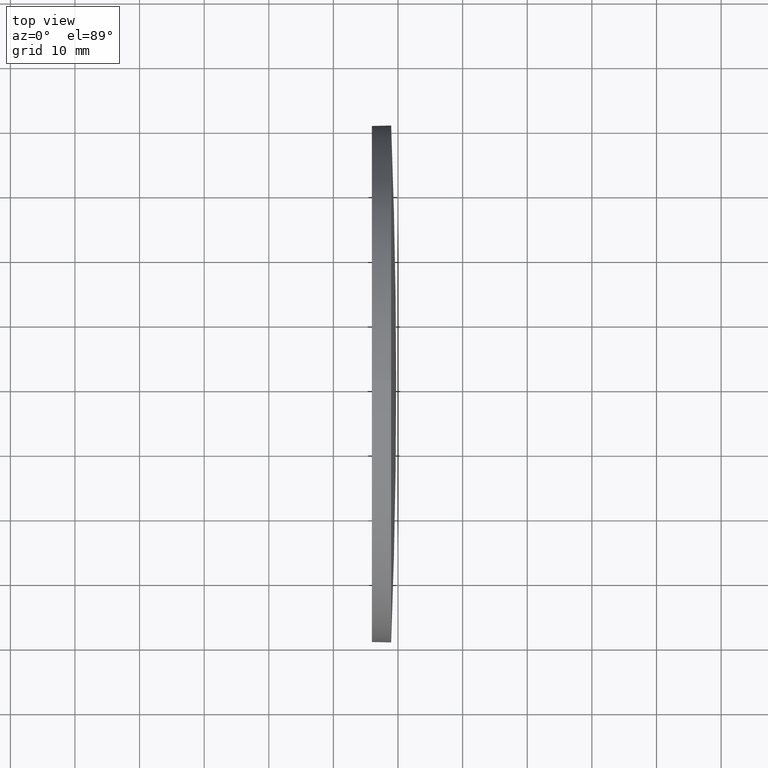
[diagram: clean part render]
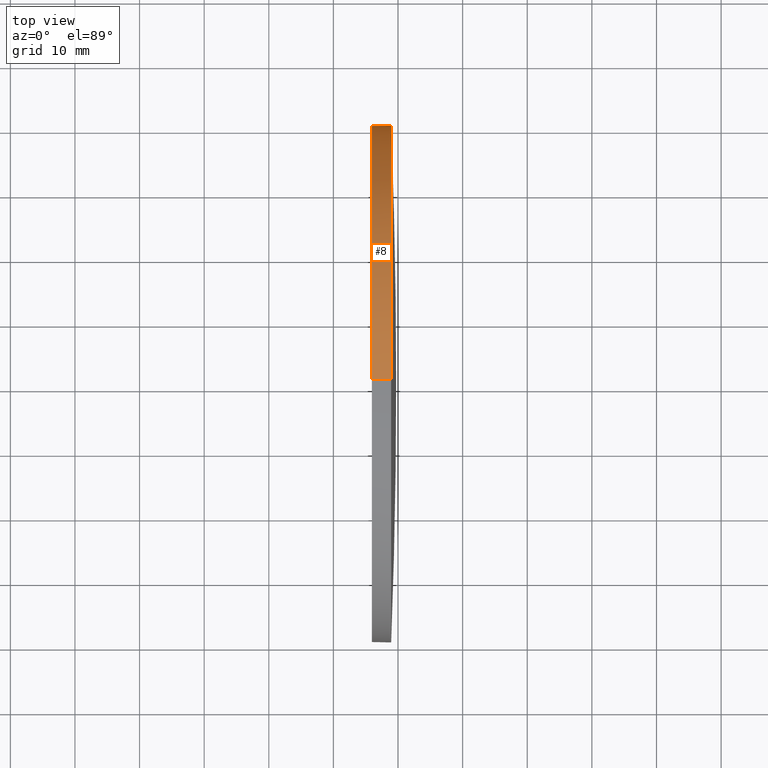
[diagram: same view with one face highlighted and labeled with its STEP entity id]
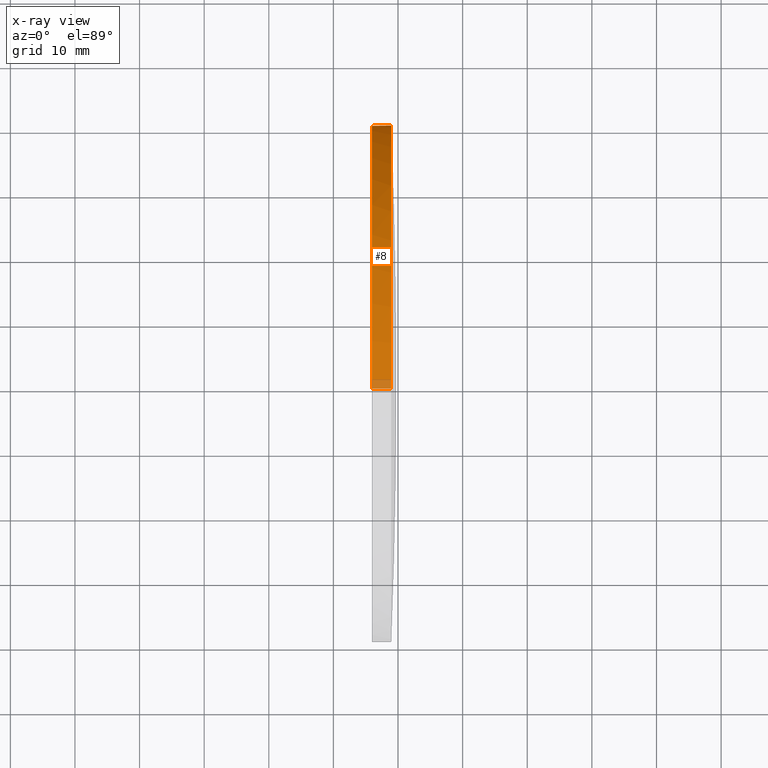
[diagram: x-ray of the same camera — body ghosted, the highlighted face saturated]
A machine part, top view. The second image highlights one B-rep face of the part: STEP entity #8.
The next image is the same camera in x-ray: the body ghosted, the highlighted face saturated — about 3% of this face is hidden behind the body in this view.
In plain terms, the highlighted cylindrical surface (partial cylindrical patch) has radius 40 mm, axis along (-1, -0, -0).
Its self-contained STEP definition (entity closure, byte-faithful):
#6 = DIRECTION ( 'NONE',  ( -1.000000000000000000, -0.0000000000000000000, -0.0000000000000000000 ) ) ;
#7 = DIRECTION ( 'NONE',  ( -1.000000000000000000, -0.0000000000000000000, -0.0000000000000000000 ) ) ;
#8 = ADVANCED_FACE ( 'NONE', ( #135 ), #43, .T. ) ;
#11 = ORIENTED_EDGE ( 'NONE', *, *, #40, .T. ) ;
#12 = CARTESIAN_POINT ( 'NONE',  ( 217.9945825323866300, 130.4671098528244200, 40.00000000000000700 ) ) ;
#14 = AXIS2_PLACEMENT_3D ( 'NONE', #174, #7, #139 ) ;
#18 = ORIENTED_EDGE ( 'NONE', *, *, #184, .T. ) ;
#19 = EDGE_CURVE ( 'NONE', #186, #78, #96, .T. ) ;
#24 = CARTESIAN_POINT ( 'NONE',  ( 228.9390942240209200, 170.4671098528231400, 0.0000000000000000000 ) ) ;
#33 = VERTEX_POINT ( 'NONE', #24 ) ;
#38 = CARTESIAN_POINT ( 'NONE',  ( 228.9390942240209200, 130.4671098528244200, 0.0000000000000000000 ) ) ;
#39 = CARTESIAN_POINT ( 'NONE',  ( 225.9490942240209100, 130.4671098528244200, -40.00000000000000700 ) ) ;
#40 = EDGE_CURVE ( 'NONE', #170, #78, #134, .T. ) ;
#42 = AXIS2_PLACEMENT_3D ( 'NONE', #98, #6, #48 ) ;
#43 = CYLINDRICAL_SURFACE ( 'NONE', #42, 40.00000000000000700 ) ;
#47 = DIRECTION ( 'NONE',  ( -1.000000000000000000, -0.0000000000000000000, -0.0000000000000000000 ) ) ;
#48 = DIRECTION ( 'NONE',  ( 0.0000000000000000000, 0.0000000000000000000, 1.000000000000000000 ) ) ;
#49 = AXIS2_PLACEMENT_3D ( 'NONE', #112, #128, #57 ) ;
#53 = EDGE_CURVE ( 'NONE', #178, #33, #154, .T. ) ;
#57 = DIRECTION ( 'NONE',  ( 0.0000000000000000000, 0.0000000000000000000, 1.000000000000000000 ) ) ;
#59 = ORIENTED_EDGE ( 'NONE', *, *, #53, .T. ) ;
#64 = CIRCLE ( 'NONE', #49, 40.00000000000000700 ) ;
#67 = ORIENTED_EDGE ( 'NONE', *, *, #19, .F. ) ;
#69 = CARTESIAN_POINT ( 'NONE',  ( 225.9490942240209100, 130.4671098528244200, 40.00000000000000700 ) ) ;
#78 = VERTEX_POINT ( 'NONE', #39 ) ;
#79 = LINE ( 'NONE', #12, #146 ) ;
#85 = CARTESIAN_POINT ( 'NONE',  ( 228.9390942240209200, 130.4671098528244200, -40.00000000000000700 ) ) ;
#88 = AXIS2_PLACEMENT_3D ( 'NONE', #38, #131, #160 ) ;
#96 = CIRCLE ( 'NONE', #14, 40.00000000000000700 ) ;
#98 = CARTESIAN_POINT ( 'NONE',  ( 217.9945825323866300, 130.4671098528244200, 0.0000000000000000000 ) ) ;
#104 = ORIENTED_EDGE ( 'NONE', *, *, #116, .F. ) ;
#112 = CARTESIAN_POINT ( 'NONE',  ( 228.9390942240209200, 130.4671098528244200, 0.0000000000000000000 ) ) ;
#114 = EDGE_LOOP ( 'NONE', ( #18, #11, #67, #104, #59 ) ) ;
#116 = EDGE_CURVE ( 'NONE', #178, #186, #79, .T. ) ;
#126 = CARTESIAN_POINT ( 'NONE',  ( 217.9945825323866300, 130.4671098528244200, -40.00000000000000700 ) ) ;
#128 = DIRECTION ( 'NONE',  ( -1.000000000000000000, -0.0000000000000000000, -0.0000000000000000000 ) ) ;
#131 = DIRECTION ( 'NONE',  ( -1.000000000000000000, -0.0000000000000000000, -0.0000000000000000000 ) ) ;
#134 = LINE ( 'NONE', #126, #148 ) ;
#135 = FACE_OUTER_BOUND ( 'NONE', #114, .T. ) ;
#139 = DIRECTION ( 'NONE',  ( 0.0000000000000000000, 0.0000000000000000000, 1.000000000000000000 ) ) ;
#146 = VECTOR ( 'NONE', #161, 1000.000000000000000 ) ;
#148 = VECTOR ( 'NONE', #47, 1000.000000000000000 ) ;
#154 = CIRCLE ( 'NONE', #88, 40.00000000000000700 ) ;
#160 = DIRECTION ( 'NONE',  ( 0.0000000000000000000, 0.0000000000000000000, 1.000000000000000000 ) ) ;
#161 = DIRECTION ( 'NONE',  ( -1.000000000000000000, -0.0000000000000000000, -0.0000000000000000000 ) ) ;
#170 = VERTEX_POINT ( 'NONE', #85 ) ;
#174 = CARTESIAN_POINT ( 'NONE',  ( 225.9490942240209100, 130.4671098528244200, 0.0000000000000000000 ) ) ;
#178 = VERTEX_POINT ( 'NONE', #181 ) ;
#181 = CARTESIAN_POINT ( 'NONE',  ( 228.9390942240209200, 130.4671098528244200, 40.00000000000000700 ) ) ;
#184 = EDGE_CURVE ( 'NONE', #33, #170, #64, .T. ) ;
#186 = VERTEX_POINT ( 'NONE', #69 ) ;